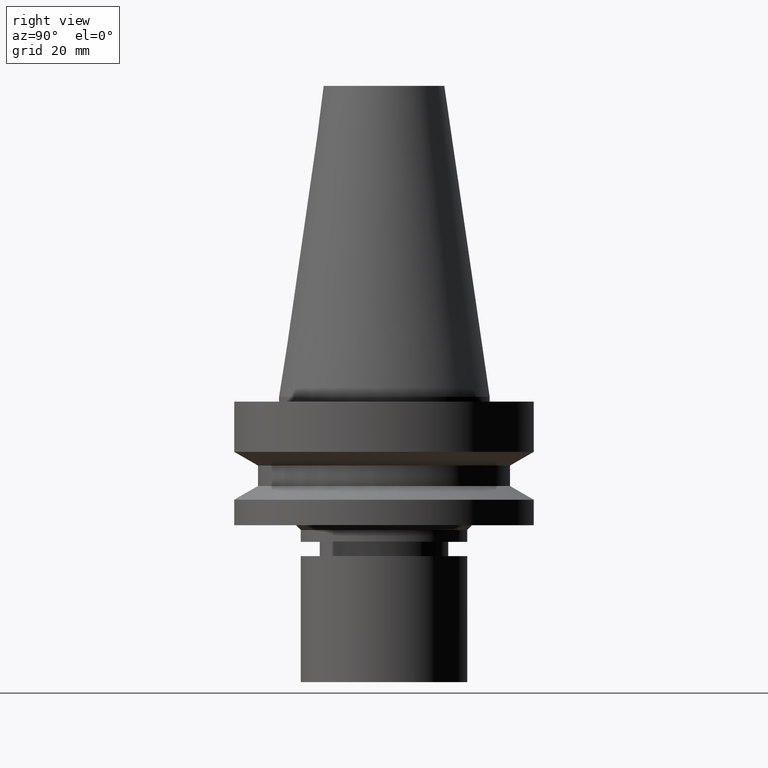
[diagram: clean part render]
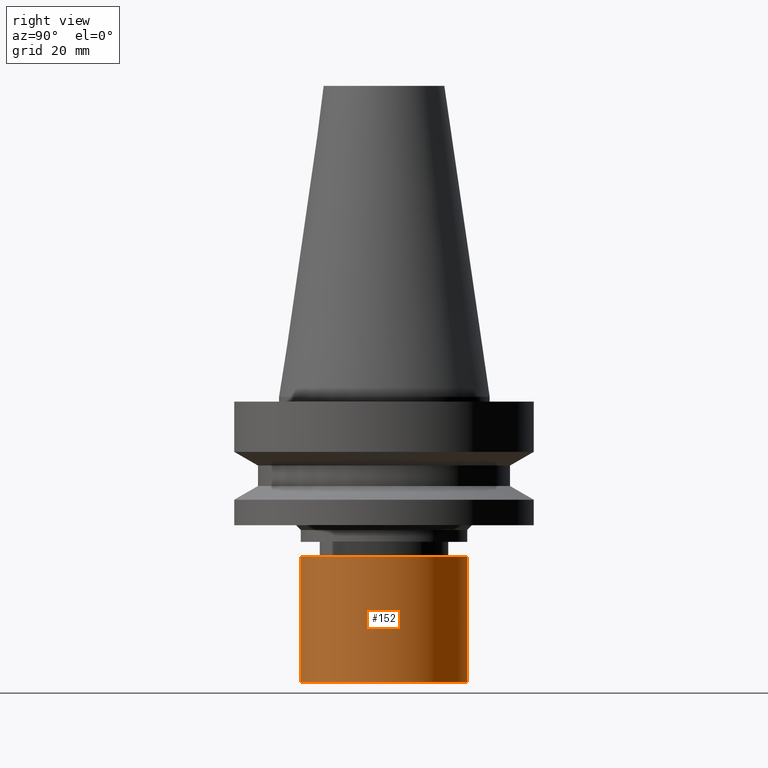
[diagram: same view with one face highlighted and labeled with its STEP entity id]
A machine part, right view. The second image highlights one B-rep face of the part: STEP entity #152.
In plain terms, the highlighted cylindrical surface (bore or boss wall) has radius 17.5 mm, axis along (0, -0, -1).
Its self-contained STEP definition (entity closure, byte-faithful):
#141=EDGE_CURVE('Unnamed[1]',#303,#303,#304,.T.);
#145=EDGE_CURVE('Unnamed[1]',#309,#309,#310,.T.);
#152=ADVANCED_FACE('Unnamed[1]',(#319,#320),#321,.T.);
#303=VERTEX_POINT('',#503);
#304=CIRCLE('',#504,17.5);
#309=VERTEX_POINT('',#511);
#310=CIRCLE('',#512,17.5);
#319=FACE_BOUND('',#524,.T.);
#320=FACE_BOUND('',#525,.T.);
#321=CYLINDRICAL_SURFACE('',#526,17.5);
#503=CARTESIAN_POINT('',(3.67394039744205E-015,17.5,-59.9999999999999));
#504=AXIS2_PLACEMENT_3D('',#695,#696,#697);
#511=CARTESIAN_POINT('',(2.05128432290317E-015,17.5,-33.500015258789));
#512=AXIS2_PLACEMENT_3D('',#701,#702,#703);
#524=EDGE_LOOP('',(#711));
#525=EDGE_LOOP('',(#712));
#526=AXIS2_PLACEMENT_3D('',#713,#714,#715);
#695=CARTESIAN_POINT('',(3.67394039744205E-015,9.32546966659976E-015,-59.9999999999999));
#696=DIRECTION('',(6.12323399573677E-017,-5.36731610657134E-016,-1.0));
#697=DIRECTION('',(2.80381797188541E-032,1.0,-5.36731610657134E-016));
#701=CARTESIAN_POINT('',(2.05128432290317E-015,2.35488491591394E-014,-33.500015258789));
#702=DIRECTION('',(6.12323399573676E-017,-5.36731610657134E-016,-1.0));
#703=DIRECTION('',(2.80381797188541E-032,1.0,-5.36731610657134E-016));
#711=ORIENTED_EDGE('',*,*,#141,.F.);
#712=ORIENTED_EDGE('',*,*,#145,.T.);
#713=CARTESIAN_POINT('',(2.86261236017261E-015,1.64371594128696E-014,-46.7500076293945));
#714=DIRECTION('',(6.12323399573677E-017,-5.36731610657134E-016,-1.0));
#715=DIRECTION('',(2.80381797188541E-032,1.0,-5.36731610657134E-016));